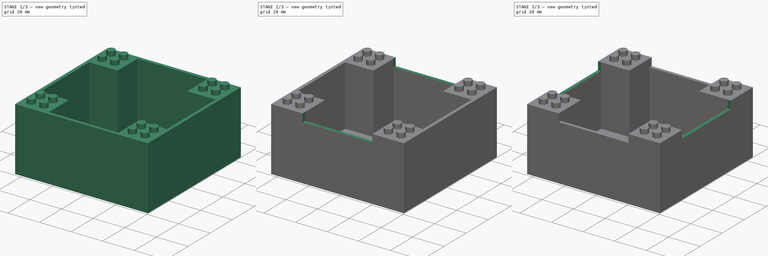
[diagram: build sequence overview — one tinted view per stage of 3, left to right]
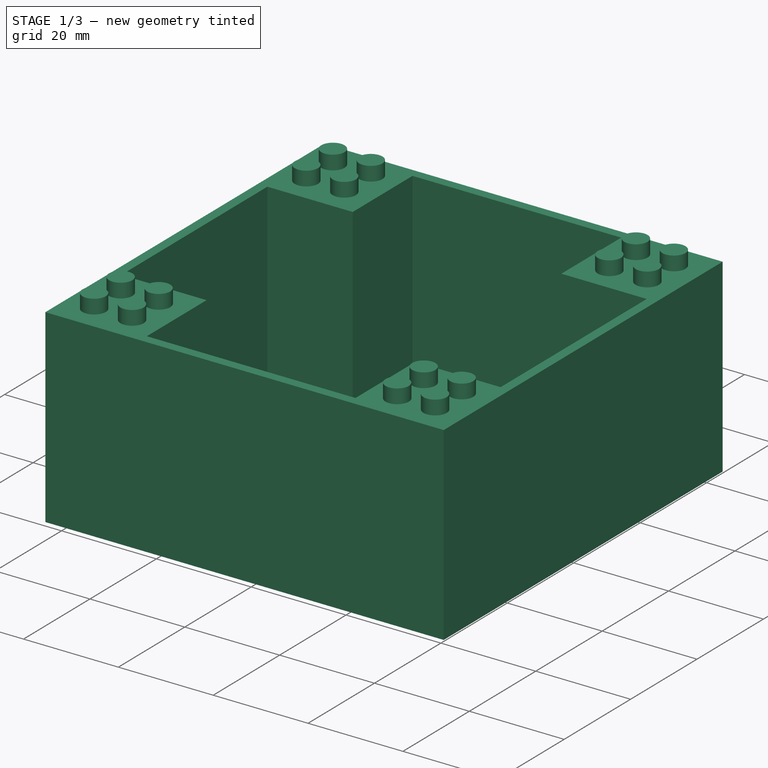
[diagram: stage 1 of 3 — iso view after this stage's code; geometry added in this stage tinted green]
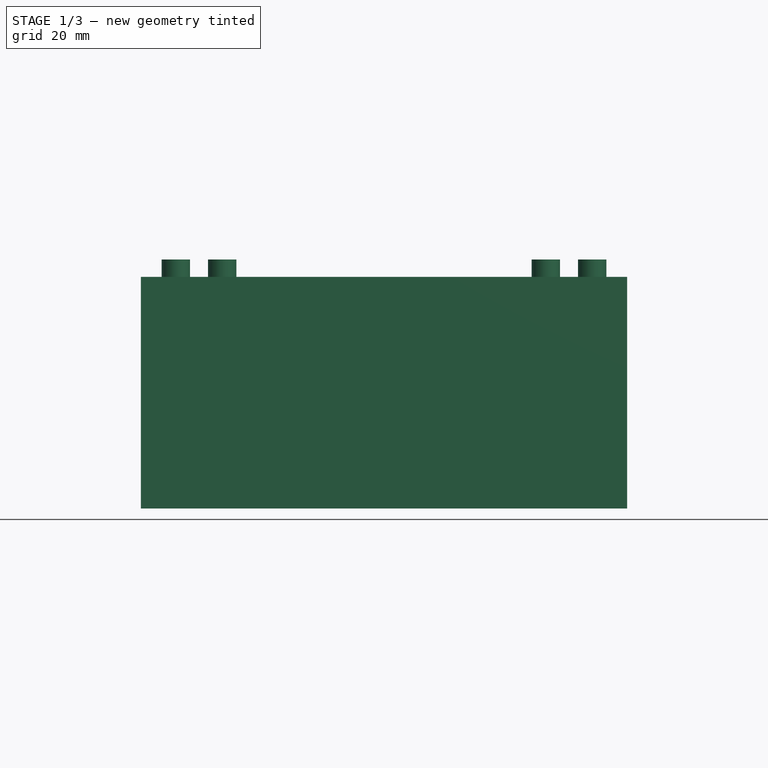
[diagram: stage 1 of 3 — front view after this stage's code; geometry added in this stage tinted green]
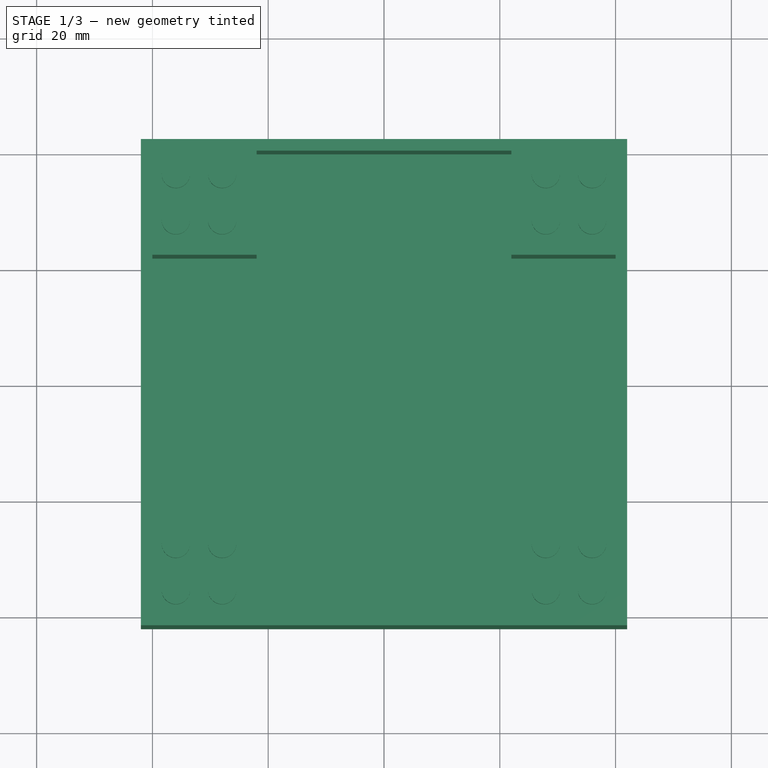
[diagram: stage 1 of 3 — top view after this stage's code; geometry added in this stage tinted green]
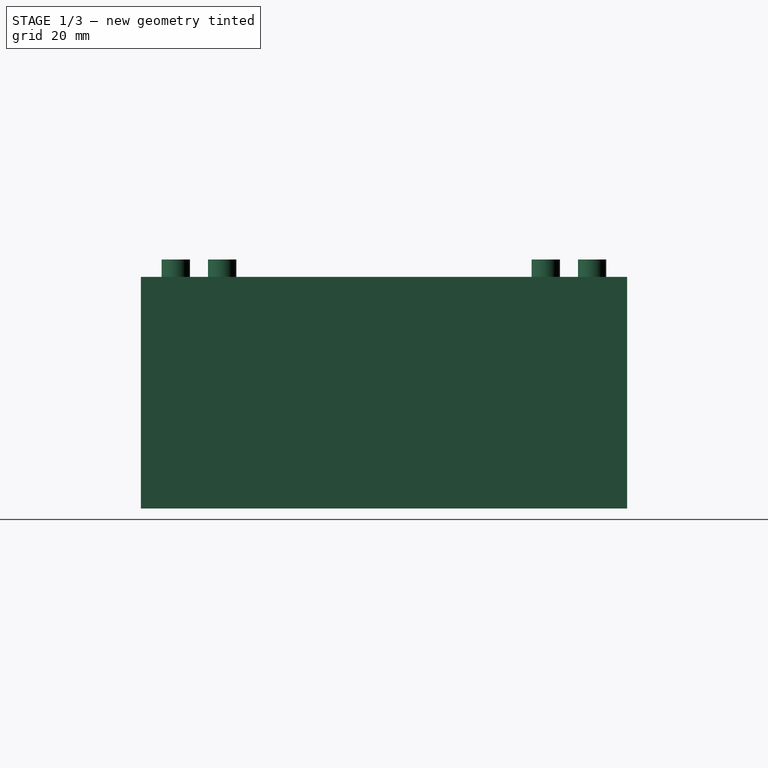
[diagram: stage 1 of 3 — right view after this stage's code; geometry added in this stage tinted green]
FCSTD DOCUMENT  (FreeCAD 0.15R4604 (Git))
Label: Turtles_Filter_Stages
License: CC-BY 3.0
LicenseURL: http://creativecommons.org/licenses/by/3.0/
objects: Sketcher::SketchObject×8, PartDesign::Pocket×6, PartDesign::Pad×2
note: 24 computed .brp shape members not serialized (recipe doc carries the construction recipe); baked Part::Feature solids carry a one-line shape summary decoded from their .brp

FEATURE [Sketcher::SketchObject] Sketch  label="Starting_Pad_Sketch"
  sketch-geometry (4):
    g0: LineSegment StartX=-42 StartY=42 StartZ=0 EndX=-42 EndY=-42 EndZ=0
    g1: LineSegment StartX=-42 StartY=-42 StartZ=0 EndX=42 EndY=-42 EndZ=0
    g2: LineSegment StartX=42 StartY=-42 StartZ=0 EndX=42 EndY=42 EndZ=0
    g3: LineSegment StartX=42 StartY=42 StartZ=0 EndX=-42 EndY=42 EndZ=0
  constraints (11):
    c: Coincident(g0,g1)
    c: Coincident(g1,g2)
    c: Coincident(g2,g3)
    c: Coincident(g3,g0)
    c: DistanceX(g3) = -84
    c: DistanceY(g2) = 84
    c: DistanceY(g0) = -84
    c: DistanceX(g1) = 84
    c: Vertical(g0)
    c: Horizontal(g1)
    c: Symmetric(g0,g2,g-1)
FEATURE [PartDesign::Pad] Pad  label="Starting_Pad"
  Length = 40
  Length2 = 20
  Sketch = -> Sketch
  Type = 0
FEATURE [Sketcher::SketchObject] Sketch005  label="Top_Basket_Pocket_Sketch"
  Placement = pos=(0,0,40) rot=(0,0,1;0rad)
  Support = -> Pad [Face6]
  sketch-geometry (12):
    g0: LineSegment StartX=-22 StartY=40 StartZ=0 EndX=-22 EndY=22 EndZ=0
    g1: LineSegment StartX=-22 StartY=22 StartZ=0 EndX=-40 EndY=22 EndZ=0
    g2: LineSegment StartX=-40 StartY=22 StartZ=0 EndX=-40 EndY=-22 EndZ=0
    g3: LineSegment StartX=-40 StartY=-22 StartZ=0 EndX=-22 EndY=-22 EndZ=0
    g4: LineSegment StartX=-22 StartY=-22 StartZ=0 EndX=-22 EndY=-40 EndZ=0
    g5: LineSegment StartX=-22 StartY=-40 StartZ=0 EndX=22 EndY=-40 EndZ=0
    g6: LineSegment StartX=22 StartY=-40 StartZ=0 EndX=22 EndY=-22 EndZ=0
    g7: LineSegment StartX=22 StartY=-22 StartZ=0 EndX=40 EndY=-22 EndZ=0
    g8: LineSegment StartX=40 StartY=-22 StartZ=0 EndX=40 EndY=22 EndZ=0
    g9: LineSegment StartX=40 StartY=22 StartZ=0 EndX=22 EndY=22 EndZ=0
    g10: LineSegment StartX=22 StartY=22 StartZ=0 EndX=22 EndY=40 EndZ=0
    g11: LineSegment StartX=22 StartY=40 StartZ=0 EndX=-22 EndY=40 EndZ=0
  constraints (36):
    c: Vertical(g0)
    c: Coincident(g0,g1)
    c: Horizontal(g1)
    c: Coincident(g1,g2)
    c: Vertical(g2)
    c: Coincident(g2,g3)
    c: Horizontal(g3)
    c: Coincident(g3,g4)
    c: Vertical(g4)
    c: Coincident(g4,g5)
    c: Horizontal(g5)
    c: Coincident(g5,g6)
    c: Vertical(g6)
    c: Coincident(g6,g7)
    c: Horizontal(g7)
    c: Coincident(g7,g8)
    c: Vertical(g8)
    c: Coincident(g8,g9)
    c: Horizontal(g9)
    c: Coincident(g9,g10)
    c: Vertical(g10)
    c: Coincident(g10,g11)
    c: Coincident(g11,g0)
    c: Horizontal(g11)
    c: DistanceX(g-1,g0) = -22
    c: DistanceX(g-1,g10) = 22
    c: DistanceY(g-1,g8) = 22
    c: DistanceY(g-1,g7) = -22
    c: DistanceX(g-1,g5) = 22
    c: DistanceX(g-1,g4) = -22
    c: DistanceY(g-1,g2) = -22
    c: DistanceY(g-1,g1) = 22
    c: DistanceX(g1) = -18
    c: DistanceY(g0) = -18
    c: DistanceY(g4) = -18
    c: DistanceX(g7) = 18
FEATURE [PartDesign::Pocket] Pocket  label="Top_Basket_Pocket"
  Length = 38
  Sketch = -> Sketch005
  Type = 0
FEATURE [Sketcher::SketchObject] Sketch004  label="Lego_Male_Pad_Sketch"
  Placement = pos=(0,0,40) rot=(0,0,1;0rad)
  Support = -> Pocket [Face5]
  sketch-geometry (16):
    g0: Circle CenterX=-35.95 CenterY=-35.95 CenterZ=0 NormalX=0 NormalY=0 NormalZ=1 Radius=2.45
    g1: Circle CenterX=35.95 CenterY=35.95 CenterZ=0 NormalX=0 NormalY=0 NormalZ=1 Radius=2.45
    g2: Circle CenterX=35.95 CenterY=-35.95 CenterZ=0 NormalX=0 NormalY=0 NormalZ=1 Radius=2.45
    g3: Circle CenterX=-35.95 CenterY=35.95 CenterZ=0 NormalX=0 NormalY=0 NormalZ=1 Radius=2.45
    g4: Circle CenterX=-27.95 CenterY=35.95 CenterZ=0 NormalX=0 NormalY=0 NormalZ=1 Radius=2.45
    g5: Circle CenterX=-27.95 CenterY=27.95 CenterZ=0 NormalX=0 NormalY=0 NormalZ=1 Radius=2.45
    g6: Circle CenterX=27.95 CenterY=27.95 CenterZ=0 NormalX=0 NormalY=0 NormalZ=1 Radius=2.45
    g7: Circle CenterX=27.95 CenterY=35.95 CenterZ=0 NormalX=0 NormalY=0 NormalZ=1 Radius=2.45
    g8: Circle CenterX=-35.95 CenterY=27.95 CenterZ=0 NormalX=0 NormalY=0 NormalZ=1 Radius=2.45
    g9: Circle CenterX=35.95 CenterY=27.95 CenterZ=0 NormalX=0 NormalY=0 NormalZ=1 Radius=2.45
    g10: Circle CenterX=27.95 CenterY=-27.95 CenterZ=0 NormalX=0 NormalY=0 NormalZ=1 Radius=2.45
    g11: Circle CenterX=27.95 CenterY=-35.95 CenterZ=0 NormalX=0 NormalY=0 NormalZ=1 Radius=2.45
    g12: Circle CenterX=35.95 CenterY=-27.95 CenterZ=0 NormalX=0 NormalY=0 NormalZ=1 Radius=2.45
    g13: Circle CenterX=-27.95 CenterY=-27.95 CenterZ=0 NormalX=0 NormalY=0 NormalZ=1 Radius=2.45
    g14: Circle CenterX=-27.95 CenterY=-35.95 CenterZ=0 NormalX=0 NormalY=0 NormalZ=1 Radius=2.45
    g15: Circle CenterX=-35.95 CenterY=-27.95 CenterZ=0 NormalX=0 NormalY=0 NormalZ=1 Radius=2.45
  constraints (48):
    c: Radius(g4) = 2.45
    c: Equal(g4,g3)
    c: Equal(g4,g8)
    c: Equal(g4,g5)
    c: Equal(g4,g6)
    c: Equal(g4,g7)
    c: Equal(g4,g1)
    c: Equal(g4,g9)
    c: Equal(g4,g13)
    c: Equal(g4,g14)
    c: Equal(g4,g0)
    c: Equal(g4,g15)
    c: Equal(g4,g11)
    c: Equal(g4,g2)
    c: Equal(g4,g12)
    c: Equal(g4,g10)
    c: DistanceX(g-1,g5) = -27.95
    c: DistanceX(g-1,g4) = -27.95
    c: DistanceX(g-1,g3) = -35.95
    c: DistanceX(g-1,g8) = -35.95
    c: DistanceY(g-1,g5) = 27.95
    c: DistanceY(g-1,g8) = 27.95
    c: DistanceY(g-1,g4) = 35.95
    c: DistanceY(g-1,g3) = 35.95
    c: DistanceY(g-1,g13) = -27.95
    c: DistanceY(g-1,g15) = -27.95
    c: DistanceX(g-1,g13) = -27.95
    c: DistanceX(g-1,g14) = -27.95
    c: DistanceX(g-1,g0) = -35.95
    c: DistanceX(g-1,g15) = -35.95
    c: DistanceX(g-1,g11) = 27.95
    c: DistanceX(g-1,g10) = 27.95
    c: DistanceX(g-1,g12) = 35.95
    c: DistanceX(g-1,g2) = 35.95
    c: DistanceY(g-1,g12) = -27.95
    c: DistanceY(g-1,g10) = -27.95
    c: DistanceY(g-1,g2) = -35.95
    c: DistanceY(g-1,g11) = -35.95
    c: DistanceX(g-1,g6) = 27.95
    c: DistanceX(g-1,g7) = 27.95
    c: DistanceX(g-1,g9) = 35.95
    c: DistanceX(g-1,g1) = 35.95
    c: DistanceY(g-1,g9) = 27.95
    c: DistanceY(g-1,g6) = 27.95
    c: DistanceY(g-1,g1) = 35.95
    c: DistanceY(g-1,g7) = 35.95
    c: DistanceY(g-1,g14) = -35.95
    c: DistanceY(g-1,g0) = -35.95
FEATURE [PartDesign::Pad] Pad001  label="Lego_Male_Pad"
  Length = 3
  Length2 = 100
  Sketch = -> Sketch004
  Type = 0
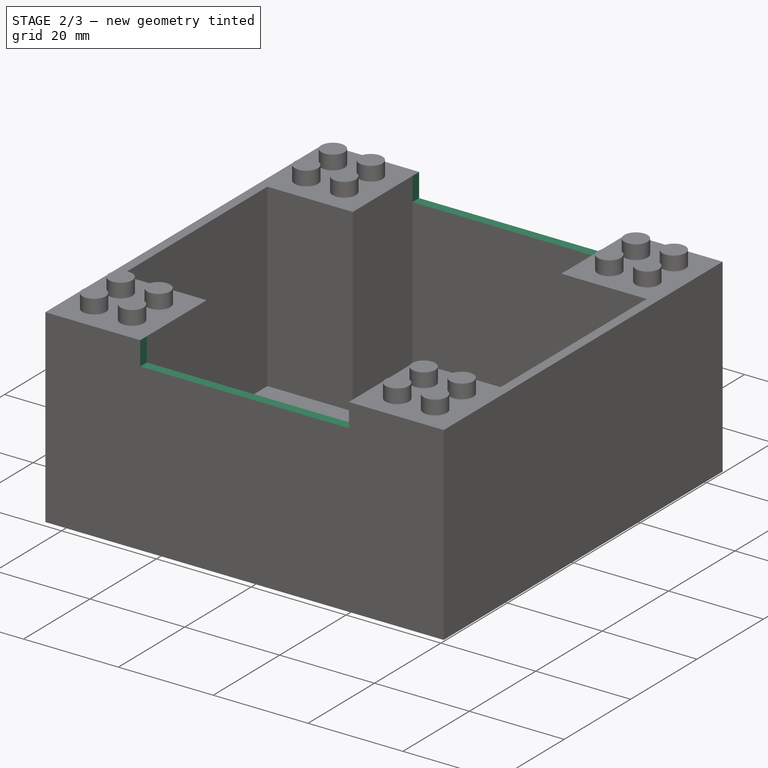
[diagram: stage 2 of 3 — iso view after this stage's code; geometry added in this stage tinted green]
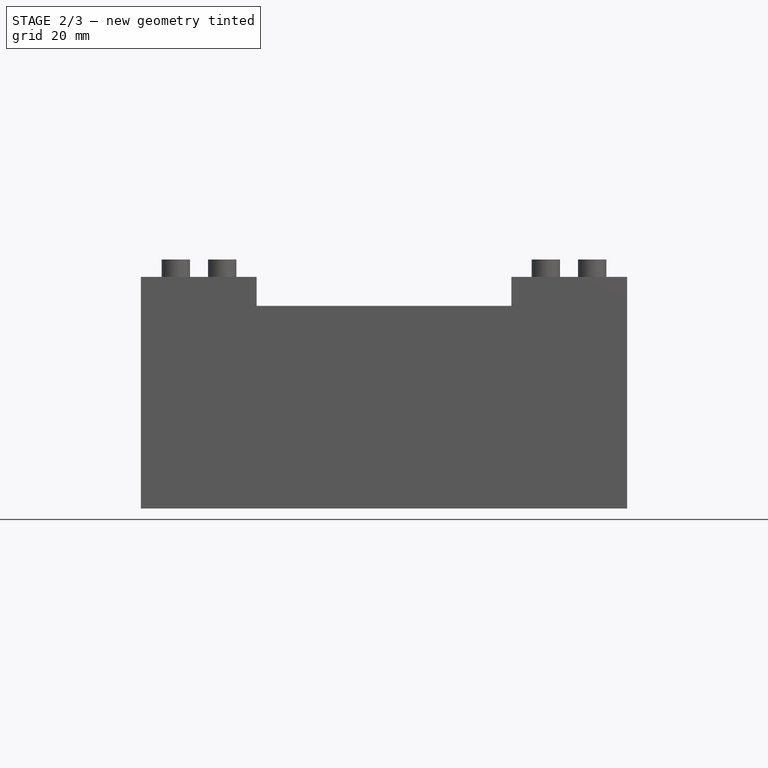
[diagram: stage 2 of 3 — front view after this stage's code; geometry added in this stage tinted green]
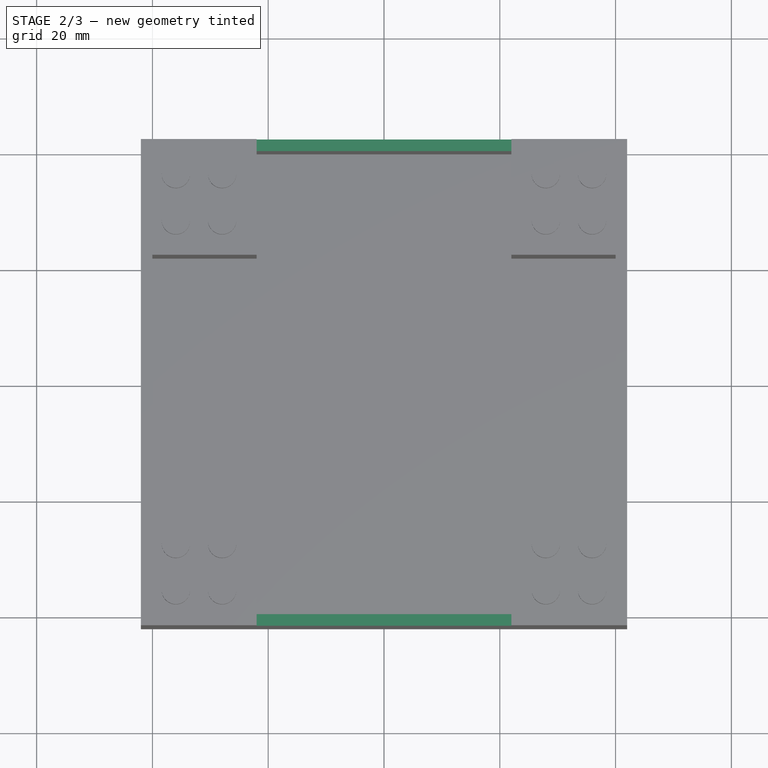
[diagram: stage 2 of 3 — top view after this stage's code; geometry added in this stage tinted green]
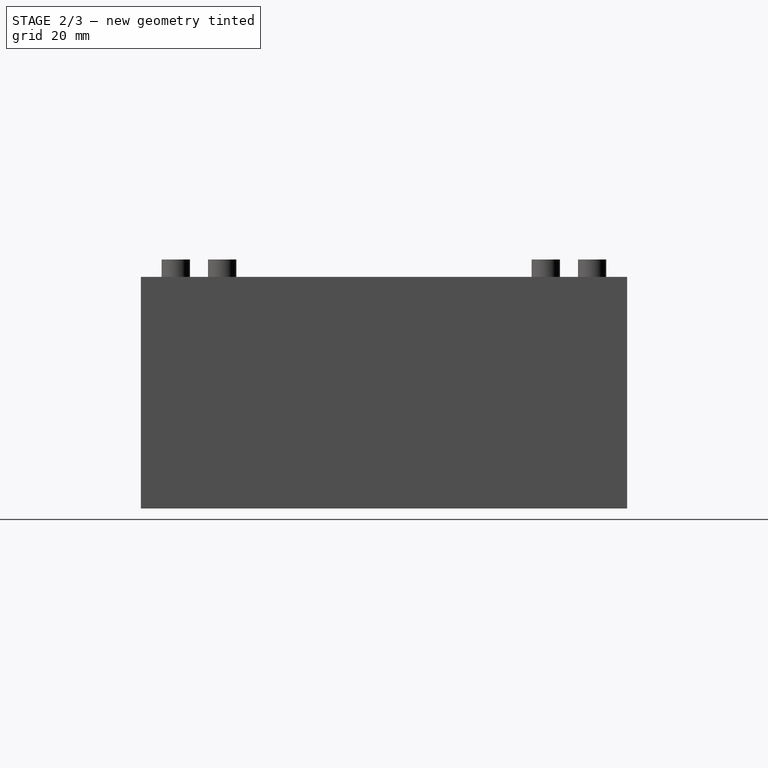
[diagram: stage 2 of 3 — right view after this stage's code; geometry added in this stage tinted green]
FEATURE [Sketcher::SketchObject] Sketch008  label="Lego_Female_Pocket_Sketch"
  Placement = pos=(0,0,0) rot=(1,0,0;3.14159rad)
  Support = -> Pad001 [Face4]
  sketch-geometry (20):
    g0: LineSegment StartX=-38.65 StartY=38.65 StartZ=0 EndX=-25.25 EndY=38.65 EndZ=0
    g1: LineSegment StartX=-25.25 StartY=38.65 StartZ=0 EndX=-25.25 EndY=25.25 EndZ=0
    g2: LineSegment StartX=-25.25 StartY=25.25 StartZ=0 EndX=-38.65 EndY=25.25 EndZ=0
    g3: LineSegment StartX=-38.65 StartY=25.25 StartZ=0 EndX=-38.65 EndY=38.65 EndZ=0
    g4: Circle CenterX=-31.95 CenterY=31.95 CenterZ=0 NormalX=0 NormalY=0 NormalZ=1 Radius=3.25
    g5: LineSegment StartX=25.25 StartY=38.65 StartZ=0 EndX=38.65 EndY=38.65 EndZ=0
    g6: LineSegment StartX=38.65 StartY=38.65 StartZ=0 EndX=38.65 EndY=25.25 EndZ=0
    g7: LineSegment StartX=38.65 StartY=25.25 StartZ=0 EndX=25.25 EndY=25.25 EndZ=0
    g8: LineSegment StartX=25.25 StartY=25.25 StartZ=0 EndX=25.25 EndY=38.65 EndZ=0
    g9: Circle CenterX=31.95 CenterY=31.95 CenterZ=0 NormalX=0 NormalY=0 NormalZ=1 Radius=3.25
    g10: LineSegment StartX=-38.65 StartY=-38.65 StartZ=0 EndX=-25.25 EndY=-38.65 EndZ=0
    g11: LineSegment StartX=-25.25 StartY=-38.65 StartZ=0 EndX=-25.25 EndY=-25.25 EndZ=0
    g12: LineSegment StartX=-25.25 StartY=-25.25 StartZ=0 EndX=-38.65 EndY=-25.25 EndZ=0
    g13: LineSegment StartX=-38.65 StartY=-25.25 StartZ=0 EndX=-38.65 EndY=-38.65 EndZ=0
    g14: Circle CenterX=-31.95 CenterY=-31.95 CenterZ=0 NormalX=0 NormalY=0 NormalZ=1 Radius=3.25
    g15: LineSegment StartX=25.25 StartY=-25.25 StartZ=0 EndX=38.65 EndY=-25.25 EndZ=0
    g16: LineSegment StartX=38.65 StartY=-25.25 StartZ=0 EndX=38.65 EndY=-38.65 EndZ=0
    g17: LineSegment StartX=38.65 StartY=-38.65 StartZ=0 EndX=25.25 EndY=-38.65 EndZ=0
    g18: LineSegment StartX=25.25 StartY=-38.65 StartZ=0 EndX=25.25 EndY=-25.25 EndZ=0
    g19: Circle CenterX=31.95 CenterY=-31.95 CenterZ=0 NormalX=0 NormalY=0 NormalZ=1 Radius=3.25
  constraints (60):
    c: Vertical(g3)
    c: Horizontal(g0)
    c: Vertical(g1)
    c: Horizontal(g2)
    c: Coincident(g0,g3)
    c: Coincident(g3,g2)
    c: Coincident(g2,g1)
    c: Coincident(g1,g0)
    c: DistanceX(g0) = 13.4
    c: DistanceY(g3) = 13.4
    c: DistanceX(g-1,g1) = -25.25
    c: DistanceY(g-1,g1) = 25.25
    c: Radius(g4) = 3.25
    c: DistanceX(g-1,g4) = -31.95
    c: DistanceY(g-1,g4) = 31.95
    c: Coincident(g10,g11)
    c: Coincident(g11,g12)
    c: Coincident(g12,g13)
    c: Coincident(g13,g10)
    c: Horizontal(g10)
    c: Horizontal(g12)
    c: Vertical(g11)
    c: Vertical(g13)
    c: Coincident(g15,g16)
    c: Coincident(g16,g17)
    c: Coincident(g17,g18)
    c: Coincident(g18,g15)
    c: Horizontal(g15)
    c: Horizontal(g17)
    c: Vertical(g16)
    c: Vertical(g18)
    c: Vertical(g8)
    c: Vertical(g6)
    c: Horizontal(g5)
    c: Horizontal(g7)
    c: DistanceX(g-1,g14) = -31.95
    c: DistanceY(g-1,g14) = -31.95
    c: DistanceX(g10) = 13.4
    c: DistanceY(g13) = -13.4
    c: DistanceX(g-1,g11) = -25.25
    c: DistanceY(g-1,g11) = -25.25
    c: DistanceY(g16) = -13.4
    c: DistanceX(g17) = -13.4
    c: DistanceX(g5) = 13.4
    c: DistanceY(g6) = -13.4
    c: DistanceX(g-1,g19) = 31.95
    c: DistanceY(g-1,g19) = -31.95
    c: DistanceX(g-1,g15) = 25.25
    c: DistanceY(g-1,g15) = -25.25
    c: DistanceX(g-1,g9) = 31.95
    c: DistanceY(g-1,g9) = 31.95
    c: DistanceX(g-1,g7) = 25.25
    c: DistanceY(g-1,g7) = 25.25
    c: Radius(g14) = 3.25
    c: Radius(g19) = 3.25
    c: Radius(g9) = 3.25
    c: Coincident(g8,g5)
    c: Coincident(g7,g6)
    c: Coincident(g5,g6)
    c: Coincident(g8,g7)
FEATURE [PartDesign::Pocket] Pocket001  label="Lego_Female_Pocket"
  Length = 5
  Sketch = -> Sketch008
  Type = 0
FEATURE [Sketcher::SketchObject] Sketch002  label="Front_Entry_Pocket_Sketch"
  Placement = pos=(0,-42,0) rot=(1,0,0;1.5708rad)
  Support = -> Pocket001 [Face3]
  sketch-geometry (4):
    g0: LineSegment StartX=-22 StartY=35 StartZ=0 EndX=22 EndY=35 EndZ=0
    g1: LineSegment StartX=-22 StartY=40 StartZ=0 EndX=22 EndY=40 EndZ=0
    g2: LineSegment StartX=-22 StartY=35 StartZ=0 EndX=-22 EndY=40 EndZ=0
    g3: LineSegment StartX=22 StartY=35 StartZ=0 EndX=22 EndY=40 EndZ=0
  constraints (12):
    c: Coincident(g2,g0)
    c: Coincident(g2,g1)
    c: Vertical(g2)
    c: Coincident(g3,g0)
    c: Coincident(g3,g1)
    c: Vertical(g3)
    c: DistanceX(g-1,g0) = -22
    c: DistanceX(g-1,g0) = 22
    c: Horizontal(g1)
    c: Horizontal(g0)
    c: DistanceY(g-1,g1) = 40
    c: DistanceY(g-1,g0) = 35
FEATURE [PartDesign::Pocket] Pocket002  label="Front_Entry_Pocket"
  Length = 5
  Sketch = -> Sketch002
  Type = 1
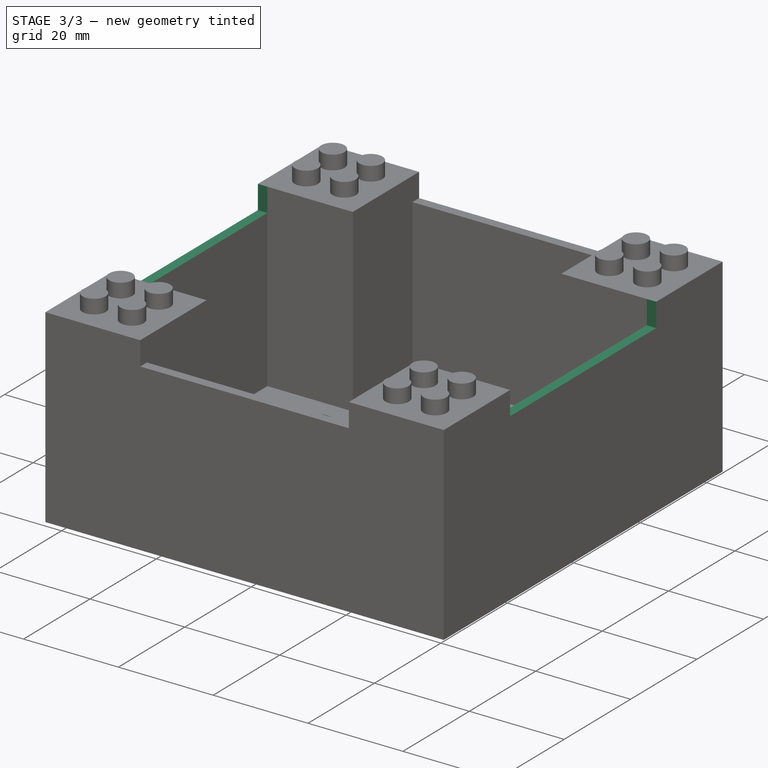
[diagram: stage 3 of 3 — iso view after this stage's code; geometry added in this stage tinted green]
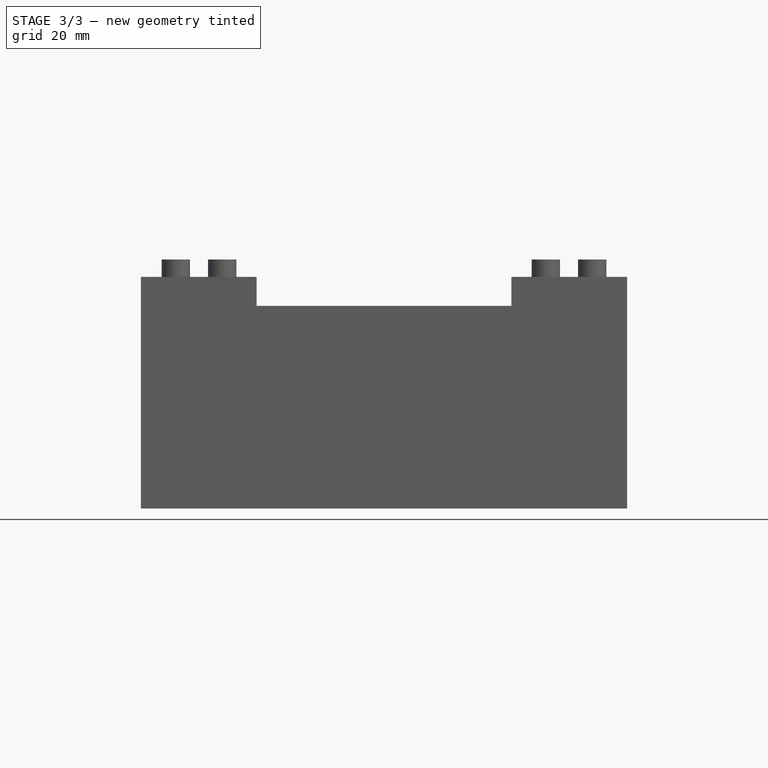
[diagram: stage 3 of 3 — front view after this stage's code; geometry added in this stage tinted green]
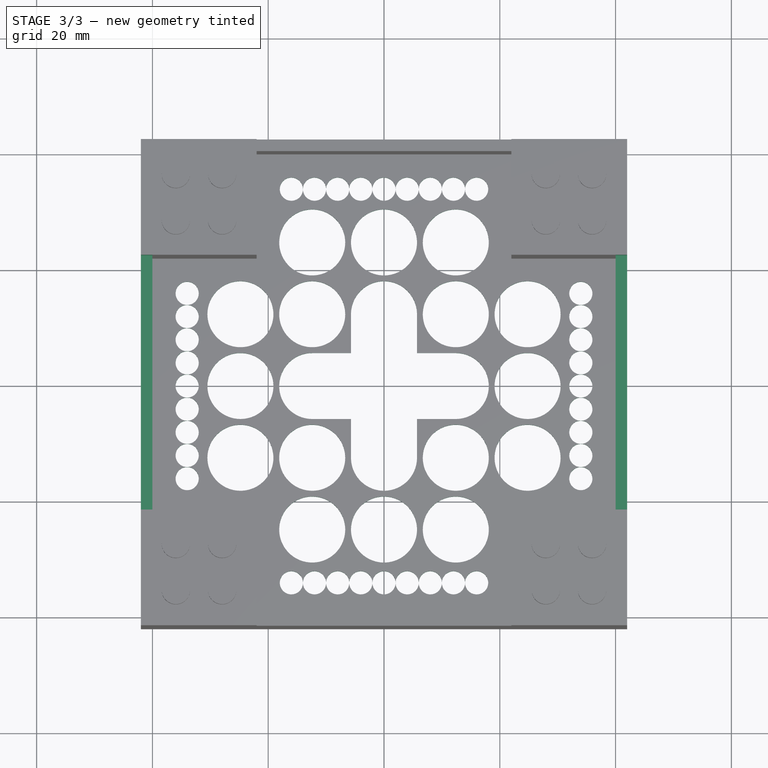
[diagram: stage 3 of 3 — top view after this stage's code; geometry added in this stage tinted green]
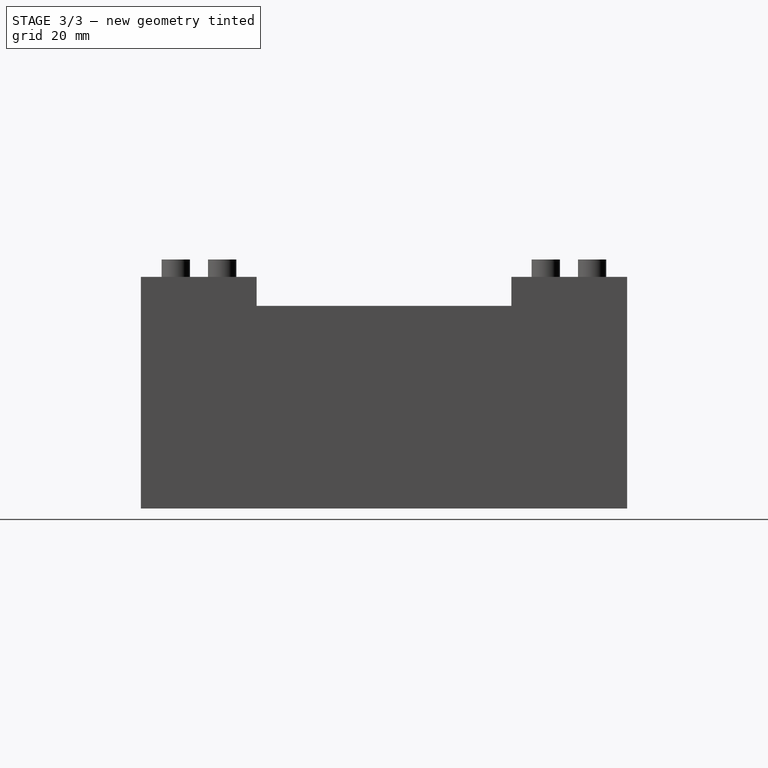
[diagram: stage 3 of 3 — right view after this stage's code; geometry added in this stage tinted green]
FEATURE [Sketcher::SketchObject] Sketch003  label="Right_Entry_Pocket_Sketch"
  Placement = pos=(42,0,0) rot=(0.57735,0.57735,0.57735;2.0944rad)
  Support = -> Pocket002 [Face8]
  sketch-geometry (4):
    g0: LineSegment StartX=-22 StartY=35 StartZ=0 EndX=22 EndY=35 EndZ=0
    g1: LineSegment StartX=-22 StartY=40 StartZ=0 EndX=22 EndY=40 EndZ=0
    g2: LineSegment StartX=-22 StartY=35 StartZ=0 EndX=-22 EndY=40 EndZ=0
    g3: LineSegment StartX=22 StartY=35 StartZ=0 EndX=22 EndY=40 EndZ=0
  constraints (12):
    c: Coincident(g2,g0)
    c: Coincident(g2,g1)
    c: Vertical(g2)
    c: Coincident(g3,g0)
    c: Coincident(g3,g1)
    c: Vertical(g3)
    c: DistanceX(g-1,g0) = -22
    c: DistanceX(g-1,g0) = 22
    c: Horizontal(g1)
    c: Horizontal(g0)
    c: DistanceY(g-1,g1) = 40
    c: DistanceY(g-1,g0) = 35
FEATURE [PartDesign::Pocket] Pocket003  label="Right_Entry_Pocket"
  Length = 5
  Sketch = -> Sketch003
  Type = 1
FEATURE [Sketcher::SketchObject] Sketch010
  Placement = pos=(0,0,2) rot=(0,0,1;0rad)
  Support = -> Pocket003 [Face52]
  sketch-geometry (57):
    g0: Circle CenterX=-12.4 CenterY=-12.4 CenterZ=0 NormalX=0 NormalY=0 NormalZ=1 Radius=5.7
    g1: Circle CenterX=0 CenterY=-12.4 CenterZ=0 NormalX=0 NormalY=0 NormalZ=1 Radius=5.7
    g2: Circle CenterX=12.4 CenterY=-12.4 CenterZ=0 NormalX=0 NormalY=0 NormalZ=1 Radius=5.7
    g3: Circle CenterX=-12.4 CenterY=0 CenterZ=0 NormalX=0 NormalY=0 NormalZ=1 Radius=5.7
    g4: Circle CenterX=0 CenterY=0 CenterZ=0 NormalX=0 NormalY=0 NormalZ=1 Radius=5.7
    g5: Circle CenterX=12.4 CenterY=0 CenterZ=0 NormalX=0 NormalY=0 NormalZ=1 Radius=5.7
    g6: Circle CenterX=-12.4 CenterY=12.4 CenterZ=0 NormalX=0 NormalY=0 NormalZ=1 Radius=5.7
    g7: Circle CenterX=0 CenterY=12.4 CenterZ=0 NormalX=0 NormalY=0 NormalZ=1 Radius=5.7
    g8: Circle CenterX=12.4 CenterY=12.4 CenterZ=0 NormalX=0 NormalY=0 NormalZ=1 Radius=5.7
    g9: Circle CenterX=-12.4 CenterY=-24.8 CenterZ=0 NormalX=0 NormalY=0 NormalZ=1 Radius=5.7
    g10: Circle CenterX=0 CenterY=-24.8 CenterZ=0 NormalX=0 NormalY=0 NormalZ=1 Radius=5.7
    g11: Circle CenterX=12.4 CenterY=-24.8 CenterZ=0 NormalX=0 NormalY=0 NormalZ=1 Radius=5.7
    g12: Circle CenterX=-24.8 CenterY=-12.4 CenterZ=0 NormalX=0 NormalY=0 NormalZ=1 Radius=5.7
    g13: Circle CenterX=-24.8 CenterY=0 CenterZ=0 NormalX=0 NormalY=0 NormalZ=1 Radius=5.7
    g14: Circle CenterX=-24.8 CenterY=12.4 CenterZ=0 NormalX=0 NormalY=0 NormalZ=1 Radius=5.7
    g15: Circle CenterX=-12.4 CenterY=24.8 CenterZ=0 NormalX=0 NormalY=0 NormalZ=1 Radius=5.7
    g16: Circle CenterX=0 CenterY=24.8 CenterZ=0 NormalX=0 NormalY=0 NormalZ=1 Radius=5.7
    g17: Circle CenterX=12.4 CenterY=24.8 CenterZ=0 NormalX=0 NormalY=0 NormalZ=1 Radius=5.7
    g18: Circle CenterX=24.8 CenterY=-12.4 CenterZ=0 NormalX=0 NormalY=0 NormalZ=1 Radius=5.7
    g19: Circle CenterX=24.8 CenterY=0 CenterZ=0 NormalX=0 NormalY=0 NormalZ=1 Radius=5.7
    g20: Circle CenterX=24.8 CenterY=12.4 CenterZ=0 NormalX=0 NormalY=0 NormalZ=1 Radius=5.7
    g21: Circle CenterX=-16 CenterY=-34 CenterZ=0 NormalX=0 NormalY=0 NormalZ=1 Radius=2
    g22: Circle CenterX=-12 CenterY=-34 CenterZ=0 NormalX=0 NormalY=0 NormalZ=1 Radius=2
    g23: Circle CenterX=-8 CenterY=-34 CenterZ=0 NormalX=0 NormalY=0 NormalZ=1 Radius=2
    g24: Circle CenterX=-4 CenterY=-34 CenterZ=0 NormalX=0 NormalY=0 NormalZ=1 Radius=2
    g25: Circle CenterX=0 CenterY=-34 CenterZ=0 NormalX=0 NormalY=0 NormalZ=1 Radius=2
    g26: Circle CenterX=4 CenterY=-34 CenterZ=0 NormalX=0 NormalY=0 NormalZ=1 Radius=2
    g27: Circle CenterX=8 CenterY=-34 CenterZ=0 NormalX=0 NormalY=0 NormalZ=1 Radius=2
    g28: Circle CenterX=12 CenterY=-34 CenterZ=0 NormalX=0 NormalY=0 NormalZ=1 Radius=2
    g29: Circle CenterX=16 CenterY=-34 CenterZ=0 NormalX=0 NormalY=0 NormalZ=1 Radius=2
    g30: Circle CenterX=-16 CenterY=34 CenterZ=0 NormalX=0 NormalY=0 NormalZ=1 Radius=2
    g31: Circle CenterX=-12 CenterY=34 CenterZ=0 NormalX=0 NormalY=0 NormalZ=1 Radius=2
    g32: Circle CenterX=-8 CenterY=34 CenterZ=0 NormalX=0 NormalY=0 NormalZ=1 Radius=2
    g33: Circle CenterX=-4 CenterY=34 CenterZ=0 NormalX=0 NormalY=0 NormalZ=1 Radius=2
    g34: Circle CenterX=0 CenterY=34 CenterZ=0 NormalX=0 NormalY=0 NormalZ=1 Radius=2
    g35: Circle CenterX=4 CenterY=34 CenterZ=0 NormalX=0 NormalY=0 NormalZ=1 Radius=2
    g36: Circle CenterX=8 CenterY=34 CenterZ=0 NormalX=0 NormalY=0 NormalZ=1 Radius=2
    g37: Circle CenterX=12 CenterY=34 CenterZ=0 NormalX=0 NormalY=0 NormalZ=1 Radius=2
    g38: Circle CenterX=16 CenterY=34 CenterZ=0 NormalX=0 NormalY=0 NormalZ=1 Radius=2
    g39: Circle CenterX=-34 CenterY=-16 CenterZ=0 NormalX=0 NormalY=0 NormalZ=1 Radius=2
    g40: Circle CenterX=-34 CenterY=-12 CenterZ=0 NormalX=0 NormalY=0 NormalZ=1 Radius=2
    g41: Circle CenterX=-34 CenterY=-8 CenterZ=0 NormalX=0 NormalY=0 NormalZ=1 Radius=2
    g42: Circle CenterX=-34 CenterY=-4 CenterZ=0 NormalX=0 NormalY=0 NormalZ=1 Radius=2
    g43: Circle CenterX=-34 CenterY=0 CenterZ=0 NormalX=0 NormalY=0 NormalZ=1 Radius=2
    g44: Circle CenterX=-34 CenterY=4 CenterZ=0 NormalX=0 NormalY=0 NormalZ=1 Radius=2
    g45: Circle CenterX=-34 CenterY=8 CenterZ=0 NormalX=0 NormalY=0 NormalZ=1 Radius=2
    g46: Circle CenterX=-34 CenterY=12 CenterZ=0 NormalX=0 NormalY=0 NormalZ=1 Radius=2
    g47: Circle CenterX=-34 CenterY=16 CenterZ=0 NormalX=0 NormalY=0 NormalZ=1 Radius=2
    g48: Circle CenterX=34 CenterY=-16 CenterZ=0 NormalX=0 NormalY=0 NormalZ=1 Radius=2
    g49: Circle CenterX=34 CenterY=-12 CenterZ=0 NormalX=0 NormalY=0 NormalZ=1 Radius=2
    g50: Circle CenterX=34 CenterY=-8 CenterZ=0 NormalX=0 NormalY=0 NormalZ=1 Radius=2
    g51: Circle CenterX=34 CenterY=-4 CenterZ=0 NormalX=0 NormalY=0 NormalZ=1 Radius=2
    g52: Circle CenterX=34 CenterY=0 CenterZ=0 NormalX=0 NormalY=0 NormalZ=1 Radius=2
    g53: Circle CenterX=34 CenterY=4 CenterZ=0 NormalX=0 NormalY=0 NormalZ=1 Radius=2
    g54: Circle CenterX=34 CenterY=8 CenterZ=0 NormalX=0 NormalY=0 NormalZ=1 Radius=2
    g55: Circle CenterX=34 CenterY=12 CenterZ=0 NormalX=0 NormalY=0 NormalZ=1 Radius=2
    g56: Circle CenterX=34 CenterY=16 CenterZ=0 NormalX=0 NormalY=0 NormalZ=1 Radius=2
  constraints (171):
    c: Radius(g0) = 5.7
    c: DistanceY(g-1,g0) = -12.4
    c: DistanceX(g-1,g0) = -12.4
    c: Radius(g1) = 5.7
    c: DistanceY(g-1,g1) = -12.4
    c: DistanceX(g-1,g1) = 0
    c: Radius(g2) = 5.7
    c: DistanceY(g-1,g2) = -12.4
    c: DistanceX(g-1,g2) = 12.4
    c: Radius(g3) = 5.7
    c: DistanceY(g-1,g3) = 0
    c: DistanceX(g-1,g3) = -12.4
    c: Radius(g4) = 5.7
    c: DistanceY(g-1,g4) = 0
    c: DistanceX(g-1,g4) = 0
    c: Radius(g5) = 5.7
    c: DistanceY(g-1,g5) = 0
    c: DistanceX(g-1,g5) = 12.4
    c: Radius(g6) = 5.7
    c: DistanceY(g-1,g6) = 12.4
    c: DistanceX(g-1,g6) = -12.4
    c: Radius(g7) = 5.7
    c: DistanceY(g-1,g7) = 12.4
    c: DistanceX(g-1,g7) = 0
    c: Radius(g8) = 5.7
    c: DistanceY(g-1,g8) = 12.4
    c: DistanceX(g-1,g8) = 12.4
    c: Radius(g9) = 5.7
    c: DistanceY(g-1,g9) = -24.8
    c: DistanceX(g-1,g9) = -12.4
    c: Radius(g10) = 5.7
    c: DistanceY(g-1,g10) = -24.8
    c: DistanceX(g-1,g10) = 0
    c: Radius(g11) = 5.7
    c: DistanceY(g-1,g11) = -24.8
    c: DistanceX(g-1,g11) = 12.4
    c: Radius(g12) = 5.7
    c: DistanceY(g-1,g12) = -12.4
    c: DistanceX(g-1,g12) = -24.8
    c: Radius(g13) = 5.7
    c: DistanceY(g-1,g13) = 0
    c: DistanceX(g-1,g13) = -24.8
    c: Radius(g14) = 5.7
    c: DistanceY(g-1,g14) = 12.4
    c: DistanceX(g-1,g14) = -24.8
    c: Radius(g15) = 5.7
    c: DistanceY(g-1,g15) = 24.8
    c: DistanceX(g-1,g15) = -12.4
    c: Radius(g16) = 5.7
    c: DistanceY(g-1,g16) = 24.8
    c: DistanceX(g-1,g16) = 0
    c: Radius(g17) = 5.7
    c: DistanceY(g-1,g17) = 24.8
    c: DistanceX(g-1,g17) = 12.4
    c: Radius(g18) = 5.7
    c: DistanceY(g-1,g18) = -12.4
    c: DistanceX(g-1,g18) = 24.8
    c: Radius(g19) = 5.7
    c: DistanceY(g-1,g19) = 0
    c: DistanceX(g-1,g19) = 24.8
    c: Radius(g20) = 5.7
    c: DistanceY(g-1,g20) = 12.4
    c: DistanceX(g-1,g20) = 24.8
    c: Radius(g21) = 2
    c: DistanceY(g-1,g21) = -34
    c: DistanceX(g-1,g21) = -16
    c: Radius(g22) = 2
    c: DistanceY(g-1,g22) = -34
    c: DistanceX(g-1,g22) = -12
    c: Radius(g23) = 2
    c: DistanceY(g-1,g23) = -34
    c: DistanceX(g-1,g23) = -8
    c: Radius(g24) = 2
    c: DistanceY(g-1,g24) = -34
    c: DistanceX(g-1,g24) = -4
    c: Radius(g25) = 2
    c: DistanceY(g-1,g25) = -34
    c: DistanceX(g-1,g25) = 0
    c: Radius(g26) = 2
    c: DistanceY(g-1,g26) = -34
    c: DistanceX(g-1,g26) = 4
    c: Radius(g27) = 2
    c: DistanceY(g-1,g27) = -34
    c: DistanceX(g-1,g27) = 8
    c: Radius(g28) = 2
    c: DistanceY(g-1,g28) = -34
    c: DistanceX(g-1,g28) = 12
    c: Radius(g29) = 2
    c: DistanceY(g-1,g29) = -34
    c: DistanceX(g-1,g29) = 16
    c: Radius(g30) = 2
    c: DistanceY(g-1,g30) = 34
    c: DistanceX(g-1,g30) = -16
    c: Radius(g31) = 2
    c: DistanceY(g-1,g31) = 34
    c: DistanceX(g-1,g31) = -12
    c: Radius(g32) = 2
    c: DistanceY(g-1,g32) = 34
    c: DistanceX(g-1,g32) = -8
    c: Radius(g33) = 2
    c: DistanceY(g-1,g33) = 34
    c: DistanceX(g-1,g33) = -4
    c: Radius(g34) = 2
    c: DistanceY(g-1,g34) = 34
    c: DistanceX(g-1,g34) = 0
    c: Radius(g35) = 2
    c: DistanceY(g-1,g35) = 34
    c: DistanceX(g-1,g35) = 4
    c: Radius(g36) = 2
    c: DistanceY(g-1,g36) = 34
    c: DistanceX(g-1,g36) = 8
    c: Radius(g37) = 2
    c: DistanceY(g-1,g37) = 34
    c: DistanceX(g-1,g37) = 12
    c: Radius(g38) = 2
    c: DistanceY(g-1,g38) = 34
    c: DistanceX(g-1,g38) = 16
    c: Radius(g39) = 2
    c: DistanceY(g-1,g39) = -16
    c: DistanceX(g-1,g39) = -34
    c: Radius(g40) = 2
    c: DistanceY(g-1,g40) = -12
    c: DistanceX(g-1,g40) = -34
    c: Radius(g41) = 2
    c: DistanceY(g-1,g41) = -8
    c: DistanceX(g-1,g41) = -34
    c: Radius(g42) = 2
    c: DistanceY(g-1,g42) = -4
    c: DistanceX(g-1,g42) = -34
    c: Radius(g43) = 2
    c: DistanceY(g-1,g43) = 0
    c: DistanceX(g-1,g43) = -34
    c: Radius(g44) = 2
    c: DistanceY(g-1,g44) = 4
    c: DistanceX(g-1,g44) = -34
    c: Radius(g45) = 2
    c: DistanceY(g-1,g45) = 8
    c: DistanceX(g-1,g45) = -34
    c: Radius(g46) = 2
    c: DistanceY(g-1,g46) = 12
    c: DistanceX(g-1,g46) = -34
    c: Radius(g47) = 2
    c: DistanceY(g-1,g47) = 16
    c: DistanceX(g-1,g47) = -34
    c: Radius(g48) = 2
    c: DistanceY(g-1,g48) = -16
    c: DistanceX(g-1,g48) = 34
    c: Radius(g49) = 2
    c: DistanceY(g-1,g49) = -12
    c: DistanceX(g-1,g49) = 34
    c: Radius(g50) = 2
    c: DistanceY(g-1,g50) = -8
    c: DistanceX(g-1,g50) = 34
    c: Radius(g51) = 2
    c: DistanceY(g-1,g51) = -4
    c: DistanceX(g-1,g51) = 34
    c: Radius(g52) = 2
    c: DistanceY(g-1,g52) = 0
    c: DistanceX(g-1,g52) = 34
    c: Radius(g53) = 2
    c: DistanceY(g-1,g53) = 4
    c: DistanceX(g-1,g53) = 34
    c: Radius(g54) = 2
    c: DistanceY(g-1,g54) = 8
    c: DistanceX(g-1,g54) = 34
    c: Radius(g55) = 2
    c: DistanceY(g-1,g55) = 12
    c: DistanceX(g-1,g55) = 34
    c: Radius(g56) = 2
    c: DistanceY(g-1,g56) = 16
    c: DistanceX(g-1,g56) = 34
FEATURE [PartDesign::Pocket] Pocket004  label="Top_Flow_Mesh_Pocket"
  Length = 5
  Sketch = -> Sketch010
  Type = 1
FEATURE [Sketcher::SketchObject] Sketch011  label="Center_Flow_Pocket_Sketch"
  Placement = pos=(0,0,2) rot=(0,0,1;0rad)
  Support = -> Pocket004 [Face92]
  sketch-geometry (12):
    g0: LineSegment StartX=-12.4 StartY=5.7 StartZ=0 EndX=-5.7 EndY=5.7 EndZ=0
    g1: LineSegment StartX=-5.7 StartY=5.7 StartZ=0 EndX=-5.7 EndY=12.4 EndZ=0
    g2: LineSegment StartX=-5.7 StartY=12.4 StartZ=0 EndX=5.7 EndY=12.4 EndZ=0
    g3: LineSegment StartX=5.7 StartY=12.4 StartZ=0 EndX=5.7 EndY=5.7 EndZ=0
    g4: LineSegment StartX=5.7 StartY=5.7 StartZ=0 EndX=12.4 EndY=5.7 EndZ=0
    g5: LineSegment StartX=12.4 StartY=5.7 StartZ=0 EndX=12.4 EndY=-5.7 EndZ=0
    g6: LineSegment StartX=12.4 StartY=-5.7 StartZ=0 EndX=5.7 EndY=-5.7 EndZ=0
    g7: LineSegment StartX=5.7 StartY=-5.7 StartZ=0 EndX=5.7 EndY=-12.4 EndZ=0
    g8: LineSegment StartX=5.7 StartY=-12.4 StartZ=0 EndX=-5.7 EndY=-12.4 EndZ=0
    g9: LineSegment StartX=-5.7 StartY=-12.4 StartZ=0 EndX=-5.7 EndY=-5.7 EndZ=0
    g10: LineSegment StartX=-5.7 StartY=-5.7 StartZ=0 EndX=-12.4 EndY=-5.7 EndZ=0
    g11: LineSegment StartX=-12.4 StartY=-5.7 StartZ=0 EndX=-12.4 EndY=5.7 EndZ=0
  constraints (36):
    c: Horizontal(g0)
    c: Coincident(g0,g1)
    c: Coincident(g1,g2)
    c: Horizontal(g2)
    c: Coincident(g2,g3)
    c: Vertical(g3)
    c: Coincident(g3,g4)
    c: Horizontal(g4)
    c: Coincident(g4,g5)
    c: Vertical(g5)
    c: Coincident(g5,g6)
    c: Horizontal(g6)
    c: Coincident(g6,g7)
    c: Vertical(g7)
    c: Coincident(g7,g8)
    c: Horizontal(g8)
    c: Coincident(g8,g9)
    c: Vertical(g9)
    c: Coincident(g9,g10)
    c: Horizontal(g10)
    c: Coincident(g10,g11)
    c: Coincident(g11,g0)
    c: Vertical(g11)
    c: Vertical(g1)
    c: DistanceY(g-1,g0) = 5.7
    c: DistanceY(g-1,g10) = -5.7
    c: DistanceX(g-1,g8) = -5.7
    c: DistanceX(g-1,g7) = 5.7
    c: DistanceY(g-1,g5) = -5.7
    c: DistanceY(g-1,g4) = 5.7
    c: DistanceX(g-1,g2) = 5.7
    c: DistanceX(g-1,g1) = -5.7
    c: DistanceY(g-1,g2) = 12.4
    c: DistanceX(g-1,g10) = -12.4
    c: DistanceY(g-1,g7) = -12.4
    c: DistanceX(g-1,g4) = 12.4
FEATURE [PartDesign::Pocket] Pocket005  label="Center_Flow_Pocket"
  Length = 5
  Sketch = -> Sketch011
  Type = 1
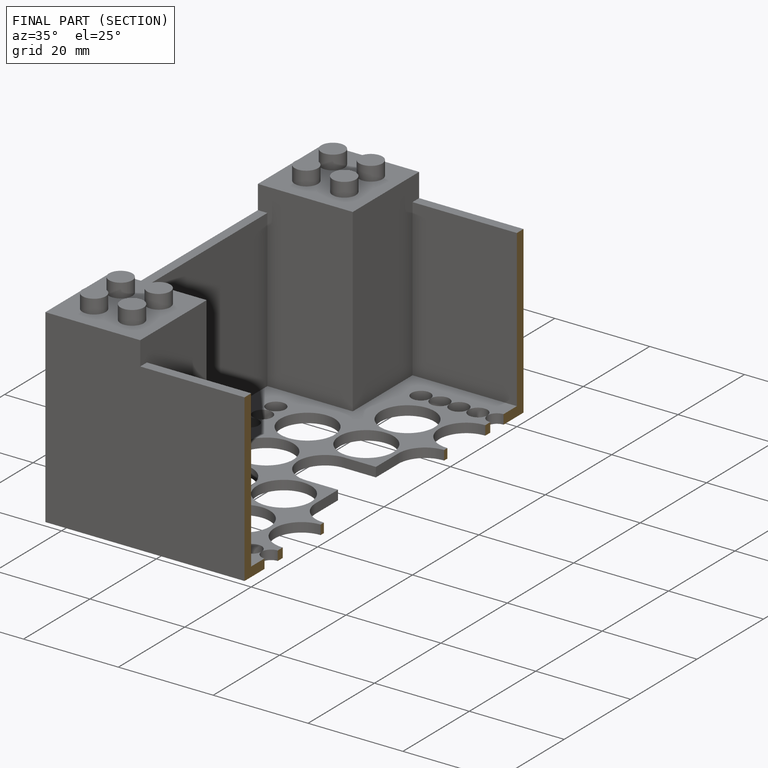
[diagram: finished part — half-section view (interior)]
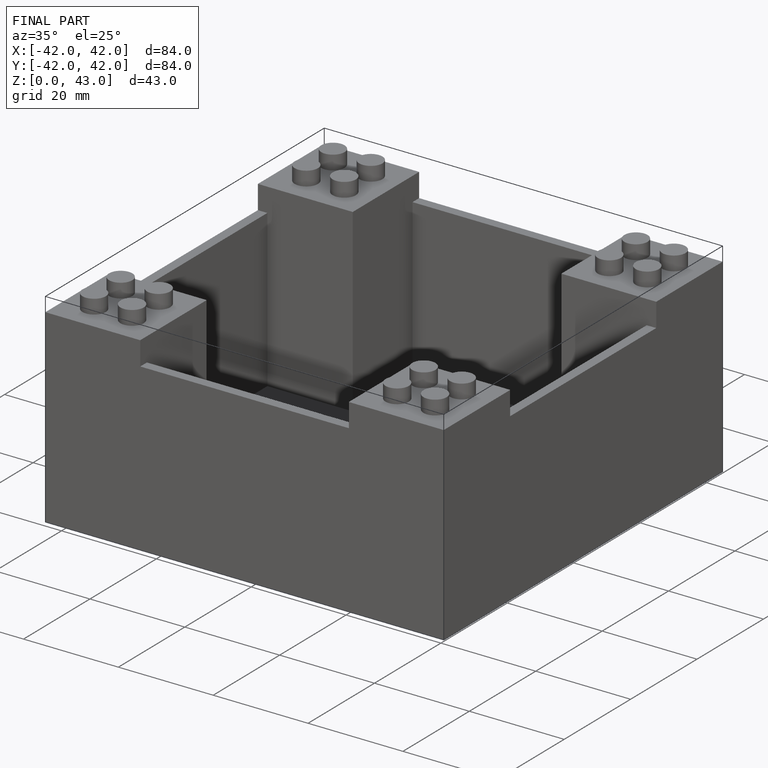
[diagram: finished part — iso view with bounding-box wireframe]
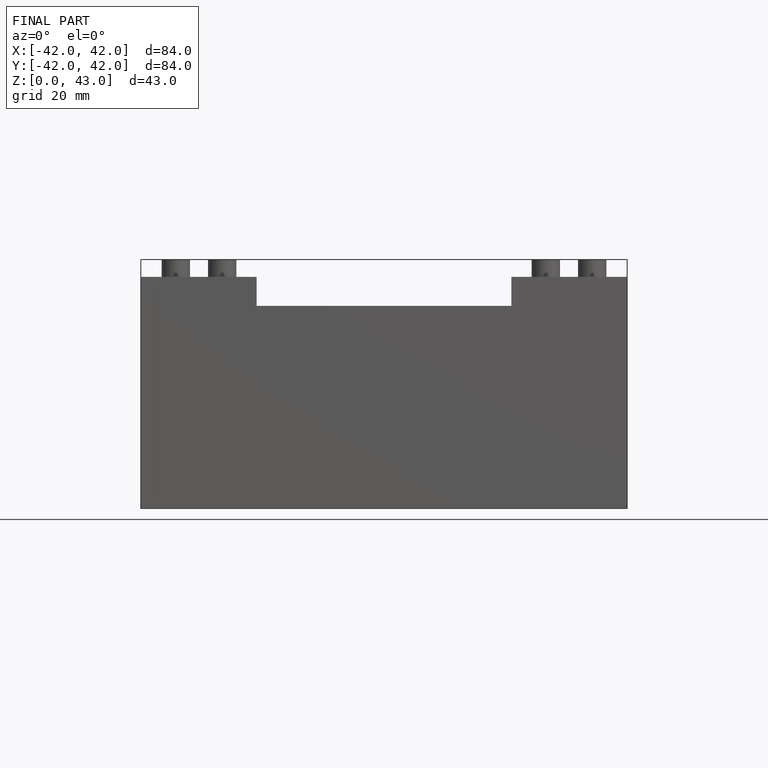
[diagram: finished part — front view with bounding-box wireframe]
